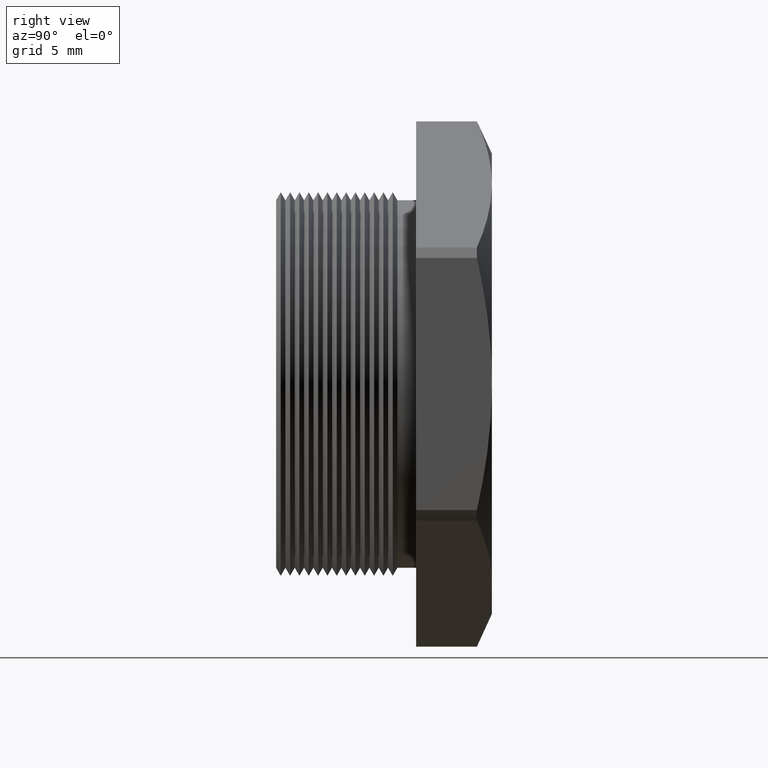
[diagram: clean part render]
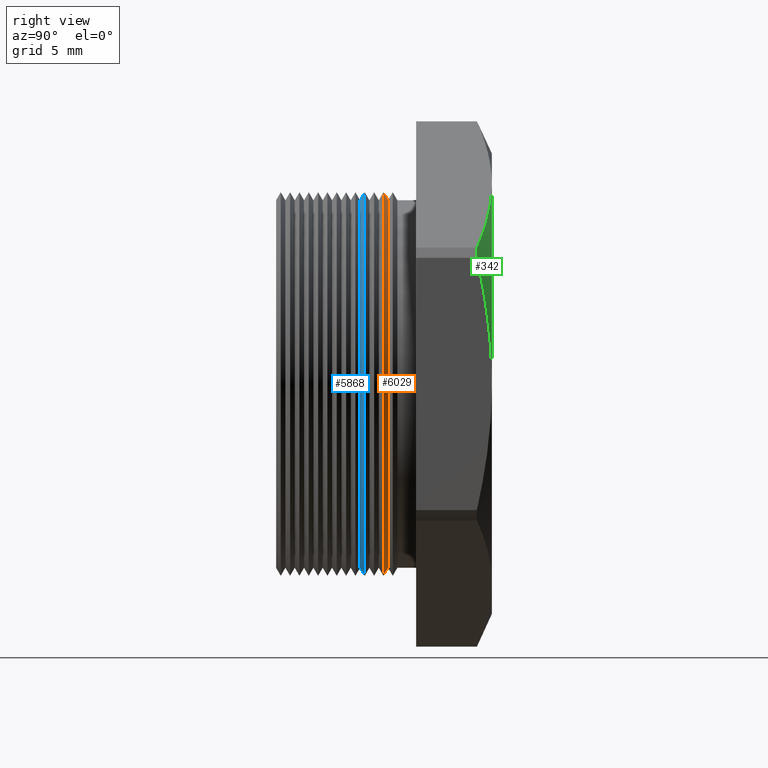
[diagram: same view with three faces highlighted in distinct colors, each labeled with its STEP entity id]
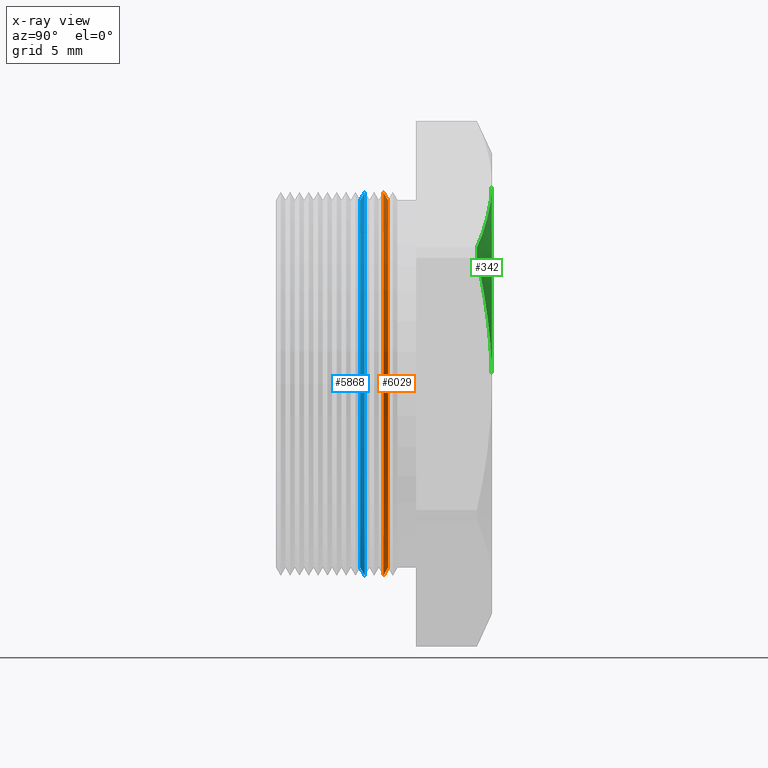
[diagram: x-ray of the same camera — body ghosted, the three highlighted faces saturated]
A machine part, right view with three faces highlighted in distinct colors.
The next image is the same camera in x-ray (body ghosted, the three faces saturated) — at least one of them is partly hidden behind the body in this view.
Their STEP definitions:

[orange] entity #6029 — the highlighted conical surface has half-angle 60 deg.
#1231 = DIRECTION ( 'NONE',  ( 0.0000000000000000000, -0.4999999999999991100, -0.8660254037844391500 ) ) ;
#1232 = VECTOR ( 'NONE', #1231, 39.37007874015748100 ) ;
#1233 = CARTESIAN_POINT ( 'NONE',  ( 0.0000000000000000000, 0.2295072448100088900, -0.3150000000000000000 ) ) ;
#1234 = LINE ( 'NONE', #1233, #1232 ) ;
#1655 = DIRECTION ( 'NONE',  ( 0.0000000000000000000, 0.0000000000000000000, -1.000000000000000000 ) ) ;
#1656 = DIRECTION ( 'NONE',  ( 0.0000000000000000000, -1.000000000000000000, 0.0000000000000000000 ) ) ;
#1657 = CARTESIAN_POINT ( 'NONE',  ( 0.0000000000000000000, 0.2295072448100088900, 0.0000000000000000000 ) ) ;
#1658 = AXIS2_PLACEMENT_3D ( 'NONE', #1657, #1656, #1655 ) ;
#1659 = CIRCLE ( 'NONE', #1658, 0.3150000000000000000 ) ;
#1684 = CARTESIAN_POINT ( 'NONE',  ( 0.0000000000000000000, 0.2215548905829479700, -0.3287738815610546400 ) ) ;
#1713 = DIRECTION ( 'NONE',  ( 1.060575238724907500E-016, -0.4999999999999991100, 0.8660254037844391500 ) ) ;
#1714 = VECTOR ( 'NONE', #1713, 39.37007874015748100 ) ;
#1715 = CARTESIAN_POINT ( 'NONE',  ( 3.857637417314162700E-017, 0.2295072448100088900, 0.3150000000000000000 ) ) ;
#1716 = LINE ( 'NONE', #1715, #1714 ) ;
#1717 = CARTESIAN_POINT ( 'NONE',  ( 3.857637417314162700E-017, 0.2295072448100088900, 0.3150000000000000000 ) ) ;
#1722 = CARTESIAN_POINT ( 'NONE',  ( 0.0000000000000000000, 0.2295072448100088900, -0.3150000000000000000 ) ) ;
#1750 = DIRECTION ( 'NONE',  ( 0.0000000000000000000, 0.0000000000000000000, -1.000000000000000000 ) ) ;
#1751 = DIRECTION ( 'NONE',  ( 0.0000000000000000000, -1.000000000000000000, 0.0000000000000000000 ) ) ;
#1752 = CARTESIAN_POINT ( 'NONE',  ( 0.0000000000000000000, 0.2295072448100088900, 0.0000000000000000000 ) ) ;
#1753 = AXIS2_PLACEMENT_3D ( 'NONE', #1752, #1751, #1750 ) ;
#1754 = CONICAL_SURFACE ( 'NONE', #1753, 0.3150000000000000000, 1.047197551196598700 ) ;
#1755 = FACE_OUTER_BOUND ( 'NONE', #5985, .T. ) ;
#1791 = CARTESIAN_POINT ( 'NONE',  ( 4.026318816969966200E-017, 0.2215548905829479700, 0.3287738815610546400 ) ) ;
#1792 = DIRECTION ( 'NONE',  ( 0.0000000000000000000, 0.0000000000000000000, 1.000000000000000000 ) ) ;
#1793 = DIRECTION ( 'NONE',  ( -0.0000000000000000000, 1.000000000000000000, -0.0000000000000000000 ) ) ;
#1794 = CARTESIAN_POINT ( 'NONE',  ( 0.0000000000000000000, 0.2215548905829479700, 0.0000000000000000000 ) ) ;
#1795 = AXIS2_PLACEMENT_3D ( 'NONE', #1794, #1793, #1792 ) ;
#1796 = CIRCLE ( 'NONE', #1795, 0.3287738815610546400 ) ;
#5737 = ORIENTED_EDGE ( 'NONE', *, *, #5738, .F. ) ;
#5738 = EDGE_CURVE ( 'NONE', #6018, #6004, #1234, .T. ) ;
#5985 = EDGE_LOOP ( 'NONE', ( #5986, #6020, #5997, #5737 ) ) ;
#5986 = ORIENTED_EDGE ( 'NONE', *, *, #5987, .T. ) ;
#5987 = EDGE_CURVE ( 'NONE', #6018, #6019, #1659, .T. ) ;
#5997 = ORIENTED_EDGE ( 'NONE', *, *, #6037, .T. ) ;
#6004 = VERTEX_POINT ( 'NONE', #1684 ) ;
#6018 = VERTEX_POINT ( 'NONE', #1722 ) ;
#6019 = VERTEX_POINT ( 'NONE', #1717 ) ;
#6020 = ORIENTED_EDGE ( 'NONE', *, *, #6021, .T. ) ;
#6021 = EDGE_CURVE ( 'NONE', #6019, #6038, #1716, .T. ) ;
#6029 = ADVANCED_FACE ( 'NONE', ( #1755 ), #1754, .T. ) ;
#6037 = EDGE_CURVE ( 'NONE', #6038, #6004, #1796, .T. ) ;
#6038 = VERTEX_POINT ( 'NONE', #1791 ) ;

[blue] entity #5868 — the highlighted conical surface has half-angle 60 deg.
#1425 = CARTESIAN_POINT ( 'NONE',  ( 3.857637417314162700E-017, 0.1816025363558870200, 0.3150000000000000000 ) ) ;
#1426 = DIRECTION ( 'NONE',  ( 0.0000000000000000000, 0.0000000000000000000, 1.000000000000000000 ) ) ;
#1427 = DIRECTION ( 'NONE',  ( -0.0000000000000000000, 1.000000000000000000, -0.0000000000000000000 ) ) ;
#1428 = CARTESIAN_POINT ( 'NONE',  ( 0.0000000000000000000, 0.1816025363558870200, 0.0000000000000000000 ) ) ;
#1429 = AXIS2_PLACEMENT_3D ( 'NONE', #1428, #1427, #1426 ) ;
#1430 = CIRCLE ( 'NONE', #1429, 0.3150000000000000000 ) ;
#1431 = DIRECTION ( 'NONE',  ( 0.0000000000000000000, 0.0000000000000000000, 1.000000000000000000 ) ) ;
#1432 = DIRECTION ( 'NONE',  ( -0.0000000000000000000, 1.000000000000000000, -0.0000000000000000000 ) ) ;
#1433 = AXIS2_PLACEMENT_3D ( 'NONE', #1435, #1432, #1431 ) ;
#1434 = CONICAL_SURFACE ( 'NONE', #1433, 0.3287738815610546400, 1.047197551196596700 ) ;
#1435 = CARTESIAN_POINT ( 'NONE',  ( 0.0000000000000000000, 0.1895548905829479700, 0.0000000000000000000 ) ) ;
#1436 = FACE_OUTER_BOUND ( 'NONE', #5962, .T. ) ;
#1568 = CARTESIAN_POINT ( 'NONE',  ( 0.0000000000000000000, 0.1895548905829479700, -0.3287738815610546400 ) ) ;
#1569 = CARTESIAN_POINT ( 'NONE',  ( 0.0000000000000000000, 0.1816025363558870200, -0.3150000000000000000 ) ) ;
#1599 = DIRECTION ( 'NONE',  ( 0.0000000000000000000, 0.5000000000000008900, 0.8660254037844380400 ) ) ;
#1600 = VECTOR ( 'NONE', #1599, 39.37007874015748100 ) ;
#1601 = CARTESIAN_POINT ( 'NONE',  ( 0.0000000000000000000, 0.1895548905829479700, 0.3287738815610546400 ) ) ;
#1602 = LINE ( 'NONE', #1601, #1600 ) ;
#1627 = CARTESIAN_POINT ( 'NONE',  ( 4.026318816969966200E-017, 0.1895548905829479700, 0.3287738815610546400 ) ) ;
#1628 = DIRECTION ( 'NONE',  ( 0.0000000000000000000, 0.0000000000000000000, 1.000000000000000000 ) ) ;
#1629 = DIRECTION ( 'NONE',  ( -0.0000000000000000000, 1.000000000000000000, -0.0000000000000000000 ) ) ;
#1630 = CARTESIAN_POINT ( 'NONE',  ( 0.0000000000000000000, 0.1895548905829479700, 0.0000000000000000000 ) ) ;
#1631 = AXIS2_PLACEMENT_3D ( 'NONE', #1630, #1629, #1628 ) ;
#1632 = CIRCLE ( 'NONE', #1631, 0.3287738815610546400 ) ;
#1633 = DIRECTION ( 'NONE',  ( 1.060575238724906300E-016, 0.5000000000000008900, -0.8660254037844380400 ) ) ;
#1634 = VECTOR ( 'NONE', #1633, 39.37007874015748100 ) ;
#1635 = CARTESIAN_POINT ( 'NONE',  ( 4.026318816969965600E-017, 0.1895548905829479700, -0.3287738815610546400 ) ) ;
#1636 = LINE ( 'NONE', #1635, #1634 ) ;
#5868 = ADVANCED_FACE ( 'NONE', ( #1436 ), #1434, .T. ) ;
#5869 = ORIENTED_EDGE ( 'NONE', *, *, #5870, .T. ) ;
#5870 = EDGE_CURVE ( 'NONE', #5871, #5933, #1430, .T. ) ;
#5871 = VERTEX_POINT ( 'NONE', #1425 ) ;
#5933 = VERTEX_POINT ( 'NONE', #1569 ) ;
#5934 = ORIENTED_EDGE ( 'NONE', *, *, #5968, .T. ) ;
#5935 = VERTEX_POINT ( 'NONE', #1568 ) ;
#5954 = ORIENTED_EDGE ( 'NONE', *, *, #5955, .F. ) ;
#5955 = EDGE_CURVE ( 'NONE', #5871, #5971, #1602, .T. ) ;
#5962 = EDGE_LOOP ( 'NONE', ( #5869, #5934, #5969, #5954 ) ) ;
#5968 = EDGE_CURVE ( 'NONE', #5933, #5935, #1636, .T. ) ;
#5969 = ORIENTED_EDGE ( 'NONE', *, *, #5970, .F. ) ;
#5970 = EDGE_CURVE ( 'NONE', #5971, #5935, #1632, .T. ) ;
#5971 = VERTEX_POINT ( 'NONE', #1627 ) ;

[green] entity #342 — the highlighted conical surface has half-angle 65 deg.
#116 = CONICAL_SURFACE ( 'NONE', #117, 0.3949999999999999600, 1.134464013796316700 ) ;
#117 = AXIS2_PLACEMENT_3D ( 'NONE', #177, #176, #175 ) ;
#122 = FACE_OUTER_BOUND ( 'NONE', #344, .T. ) ;
#175 = DIRECTION ( 'NONE',  ( 0.0000000000000000000, 0.0000000000000000000, 1.000000000000000000 ) ) ;
#176 = DIRECTION ( 'NONE',  ( 0.0000000000000000000, -1.000000000000000000, 0.0000000000000000000 ) ) ;
#177 = CARTESIAN_POINT ( 'NONE',  ( 0.0000000000000000000, 0.4075548905829479200, 0.0000000000000000000 ) ) ;
#315 = ORIENTED_EDGE ( 'NONE', *, *, #2365, .F. ) ;
#320 = ORIENTED_EDGE ( 'NONE', *, *, #778, .F. ) ;
#331 = ORIENTED_EDGE ( 'NONE', *, *, #6172, .F. ) ;
#342 = ADVANCED_FACE ( 'NONE', ( #122 ), #116, .T. ) ;
#343 = ORIENTED_EDGE ( 'NONE', *, *, #698, .F. ) ;
#344 = EDGE_LOOP ( 'NONE', ( #343, #331, #315, #320 ) ) ;
#486 = VERTEX_POINT ( 'NONE', #3468 ) ;
#594 = VERTEX_POINT ( 'NONE', #3451 ) ;
#698 = EDGE_CURVE ( 'NONE', #594, #486, #3449, .T. ) ;
#778 = EDGE_CURVE ( 'NONE', #486, #5081, #3512, .T. ) ;
#2026 = CARTESIAN_POINT ( 'NONE',  ( 0.3949999999999999100, 0.3817680770869766300, 0.2162061284977834200 ) ) ;
#2027 = CARTESIAN_POINT ( 'NONE',  ( 0.3949999999999998000, 0.3857296899625916600, 0.1985118265780807000 ) ) ;
#2028 = CARTESIAN_POINT ( 'NONE',  ( 0.3949999999999999600, 0.3893452919667751400, 0.1806955282113400500 ) ) ;
#2029 = CARTESIAN_POINT ( 'NONE',  ( 0.3949999999999998000, 0.3957276417007040700, 0.1447636425997208300 ) ) ;
#2030 = CARTESIAN_POINT ( 'NONE',  ( 0.3949999999999999100, 0.3984961718953027900, 0.1266059567968361400 ) ) ;
#2031 = CARTESIAN_POINT ( 'NONE',  ( 0.3949999999999999100, 0.4052044546719837400, 0.07229419125091378400 ) ) ;
#2032 = CARTESIAN_POINT ( 'NONE',  ( 0.3949999999999999600, 0.4075548905829479700, 0.03612544173943638800 ) ) ;
#2033 = CARTESIAN_POINT ( 'NONE',  ( 0.3949999999999999600, 0.4075548905829479200, 1.182924880895400300E-016 ) ) ;
#2036 = B_SPLINE_CURVE_WITH_KNOTS ( 'NONE', 3,
 ( #2033, #2032, #2031, #2030, #2029, #2028, #2027, #2026 ),
 .UNSPECIFIED., .F., .F.,
 ( 4, 2, 2, 4 ),
 ( 0.01592323799025090500, 0.01869279567580648500, 0.02007757451858427400, 0.02146235336136206500 ),
 .UNSPECIFIED. ) ;
#2365 = EDGE_CURVE ( 'NONE', #5081, #3386, #3638, .T. ) ;
#2766 = CARTESIAN_POINT ( 'NONE',  ( 0.1975000000000001800, 0.4075548905829479700, 0.3420800344948533000 ) ) ;
#3386 = VERTEX_POINT ( 'NONE', #3670 ) ;
#3449 = CIRCLE ( 'NONE', #3510, 0.4502999999999999800 ) ;
#3451 = CARTESIAN_POINT ( 'NONE',  ( 0.3949999999999999100, 0.3817680770869766300, 0.2162061284977834200 ) ) ;
#3468 = CARTESIAN_POINT ( 'NONE',  ( 0.3847399997329630200, 0.3817680770869766300, 0.2339769702459616700 ) ) ;
#3507 = DIRECTION ( 'NONE',  ( 0.0000000000000000000, 0.0000000000000000000, -1.000000000000000000 ) ) ;
#3508 = DIRECTION ( 'NONE',  ( 0.0000000000000000000, -1.000000000000000000, 0.0000000000000000000 ) ) ;
#3509 = CARTESIAN_POINT ( 'NONE',  ( 0.0000000000000000000, 0.3817680770869766300, 0.0000000000000000000 ) ) ;
#3510 = AXIS2_PLACEMENT_3D ( 'NONE', #3509, #3508, #3507 ) ;
#3512 = B_SPLINE_CURVE_WITH_KNOTS ( 'NONE', 3,
 ( #3569, #3568, #3567, #3566, #3565, #3564 ),
 .UNSPECIFIED., .F., .F.,
 ( 4, 2, 4 ),
 ( 2.335025902633483100E-007, 0.002760212844509914900, 0.005520192186429569000 ),
 .UNSPECIFIED. ) ;
#3564 = CARTESIAN_POINT ( 'NONE',  ( 0.1975000000000001800, 0.4075548905829479700, 0.3420800344948533000 ) ) ;
#3565 = CARTESIAN_POINT ( 'NONE',  ( 0.2289182622552072300, 0.4075548905829479700, 0.3239406923243393600 ) ) ;
#3566 = CARTESIAN_POINT ( 'NONE',  ( 0.2602199223343859600, 0.4051865378565921400, 0.3058686704515431500 ) ) ;
#3567 = CARTESIAN_POINT ( 'NONE',  ( 0.3226184986981740500, 0.3962912005447678500, 0.2698428355908606400 ) ) ;
#3568 = CARTESIAN_POINT ( 'NONE',  ( 0.3537166105170322900, 0.3897884989263423700, 0.2518883323609538100 ) ) ;
#3569 = CARTESIAN_POINT ( 'NONE',  ( 0.3847399997329630200, 0.3817680770869766300, 0.2339769702459616700 ) ) ;
#3634 = DIRECTION ( 'NONE',  ( 0.0000000000000000000, 0.0000000000000000000, 1.000000000000000000 ) ) ;
#3635 = DIRECTION ( 'NONE',  ( 0.0000000000000000000, 1.000000000000000000, 0.0000000000000000000 ) ) ;
#3636 = CARTESIAN_POINT ( 'NONE',  ( 0.0000000000000000000, 0.4075548905829479200, 0.0000000000000000000 ) ) ;
#3637 = AXIS2_PLACEMENT_3D ( 'NONE', #3636, #3635, #3634 ) ;
#3638 = CIRCLE ( 'NONE', #3637, 0.3949999999999999600 ) ;
#3670 = CARTESIAN_POINT ( 'NONE',  ( 0.3949999999999999600, 0.4075548905829479200, 1.182924880895400300E-016 ) ) ;
#5081 = VERTEX_POINT ( 'NONE', #2766 ) ;
#6172 = EDGE_CURVE ( 'NONE', #3386, #594, #2036, .T. ) ;